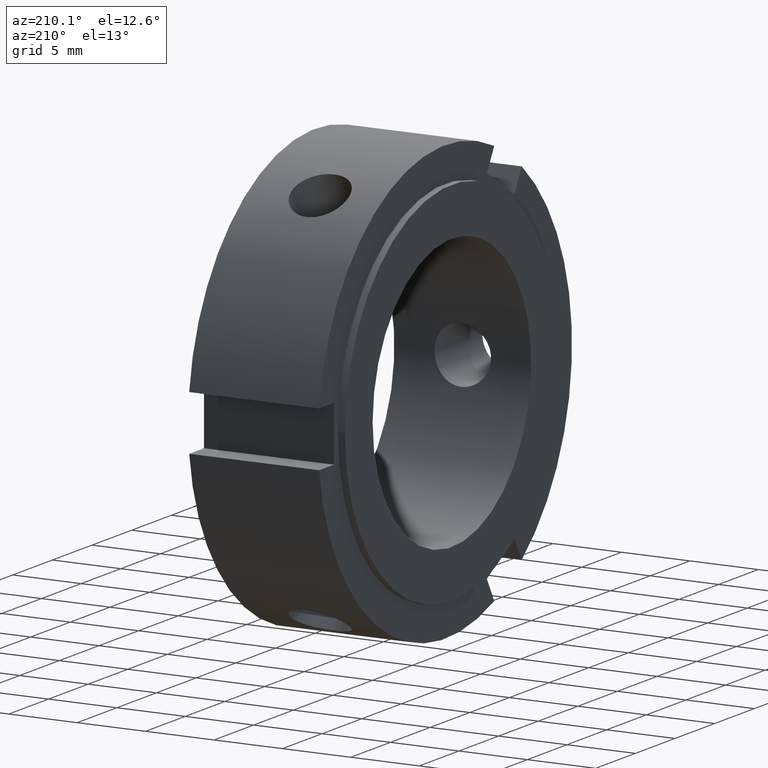
[diagram: clean part render]
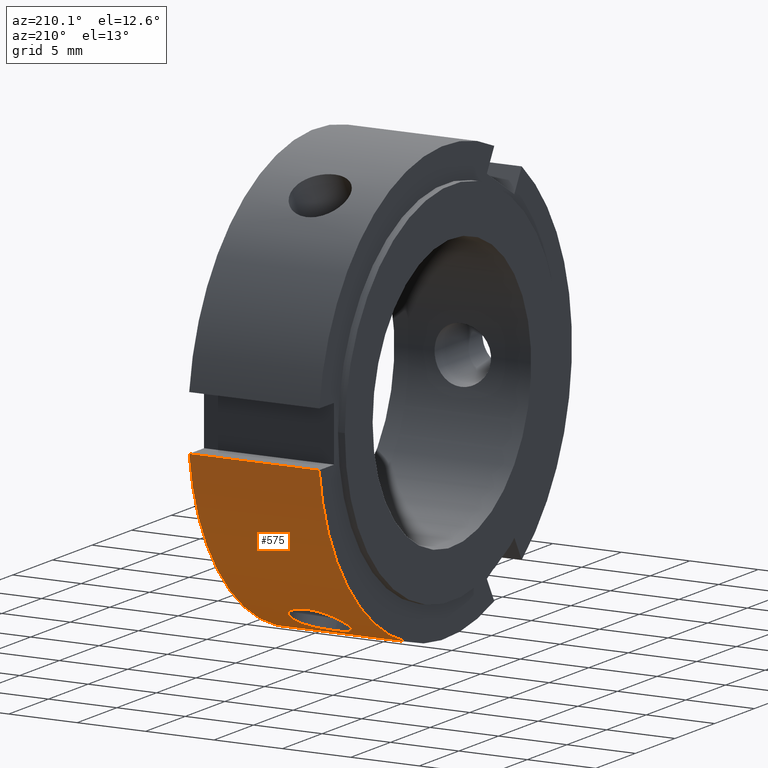
[diagram: same view with one face highlighted and labeled with its STEP entity id]
A machine part, auxiliary view. The second image highlights one B-rep face of the part: STEP entity #575.
In plain terms, the highlighted cylindrical surface (partial cylindrical patch) has radius 16 mm, axis along (1, 0, 0).
Its self-contained STEP definition (entity closure, byte-faithful):
#113=CARTESIAN_POINT('',(0.499999999999998,-6.205203125624903,-14.747727084867517));
#114=VERTEX_POINT('',#113);
#123=CARTESIAN_POINT('',(9.999999999999996,-6.205203125624903,-14.747727084867517));
#124=VERTEX_POINT('',#123);
#125=CARTESIAN_POINT('',(9.999999999999995,-6.205203125624902,-14.747727084867517));
#126=DIRECTION('',(-1.0,0.0,0.0));
#127=VECTOR('',#126,9.499999999999996);
#128=LINE('',#125,#127);
#129=EDGE_CURVE('',#124,#114,#128,.T.);
#365=CARTESIAN_POINT('',(4.999999999999996,6.142886964505618,-14.773792327676293));
#366=VERTEX_POINT('',#365);
#367=CARTESIAN_POINT('',(4.999999999999996,6.142886964505617,-14.773792327676293));
#368=CARTESIAN_POINT('',(5.259850414627229,6.142886964505617,-14.773792327676293));
#369=CARTESIAN_POINT('',(5.536820394372652,6.191433484272263,-14.753895967804445));
#370=CARTESIAN_POINT('',(6.045999172821702,6.386878303591828,-14.670346971773098));
#371=CARTESIAN_POINT('',(6.278233054693932,6.533575982405217,-14.606378314100077));
#372=CARTESIAN_POINT('',(6.644944629392624,6.867977280265613,-14.452155202713875));
#373=CARTESIAN_POINT('',(6.803974245744747,7.078040765715421,-14.351526549512908));
#374=CARTESIAN_POINT('',(7.015009926134721,7.531613029037318,-14.118774045975487));
#375=CARTESIAN_POINT('',(7.066999999999996,7.774965086744901,-13.986330428295915));
#376=CARTESIAN_POINT('',(7.066999999999997,8.225034913255094,-13.726482492806127));
#377=CARTESIAN_POINT('',(7.015009926134721,8.461410479588507,-13.581955237607932));
#378=CARTESIAN_POINT('',(6.803974245744746,8.889766192107292,-13.305526386887877));
#379=CARTESIAN_POINT('',(6.644944629392626,9.081944904852850,-13.173920398681322));
#380=CARTESIAN_POINT('',(6.278233054693933,9.382706686094178,-12.961431935368831));
#381=CARTESIAN_POINT('',(6.045999172821702,9.511454008091695,-12.866372347676741));
#382=CARTESIAN_POINT('',(5.536820394372654,9.681531970775311,-12.738886667123609));
#383=CARTESIAN_POINT('',(5.259850414627227,9.723035983750489,-12.706792327676297));
#384=CARTESIAN_POINT('',(4.740149585372764,9.723035983750489,-12.706792327676297));
#385=CARTESIAN_POINT('',(4.463179605627338,9.681531970775309,-12.738886667123611));
#386=CARTESIAN_POINT('',(3.954000827178288,9.511454008091695,-12.866372347676743));
#387=CARTESIAN_POINT('',(3.721766945306058,9.382706686094174,-12.961431935368829));
#388=CARTESIAN_POINT('',(3.355055370607366,9.081944904852845,-13.173920398681318));
#389=CARTESIAN_POINT('',(3.196025754255245,8.889766192107288,-13.305526386887871));
#390=CARTESIAN_POINT('',(2.984990073865271,8.461410479588507,-13.581955237607929));
#391=CARTESIAN_POINT('',(2.932999999999995,8.225034913255094,-13.726482492806127));
#392=CARTESIAN_POINT('',(2.932999999999995,7.774965086744901,-13.986330428295915));
#393=CARTESIAN_POINT('',(2.984990073865270,7.531613029037319,-14.118774045975487));
#394=CARTESIAN_POINT('',(3.196025754255244,7.078040765715424,-14.351526549512908));
#395=CARTESIAN_POINT('',(3.355055370607367,6.867977280265613,-14.452155202713875));
#396=CARTESIAN_POINT('',(3.721766945306058,6.533575982405217,-14.606378314100077));
#397=CARTESIAN_POINT('',(3.954000827178287,6.386878303591828,-14.670346971773098));
#398=CARTESIAN_POINT('',(4.463179605627338,6.191433484272263,-14.753895967804446));
#399=CARTESIAN_POINT('',(4.740149585372764,6.142886964505617,-14.773792327676293));
#400=CARTESIAN_POINT('',(4.999999999999996,6.142886964505617,-14.773792327676293));
#401=B_SPLINE_CURVE_WITH_KNOTS('',3,(#367,#368,#369,#370,#371,#372,#373,#374,#375,#376,#377,#378,#379,#380,#381,#382,#383,#384,#385,#386,#387,#388,#389,#390,#391,#392,#393,#394,#395,#396,#397,#398,#399,#400),.UNSPECIFIED.,.T.,.U.,(4,2,2,2,2,2,2,2,2,2,2,2,2,2,2,2,4),(0.0,0.077955124388169,0.155910248776339,0.233864629423276,0.311819010070212,0.389773390717149,0.467727771364086,0.545682895752255,0.623638020140425,0.701593144528594,0.779548268916763,0.857502649563700,0.935457030210637,1.013411410857573,1.091365791504510,1.169320915892679,1.247276040280849),.UNSPECIFIED.);
#402=EDGE_CURVE('',#366,#366,#401,.T.);
#456=CARTESIAN_POINT('',(9.999999999999996,15.874507866387543,-2.000000000000000));
#457=VERTEX_POINT('',#456);
#458=CARTESIAN_POINT('',(9.999999999999996,0.0,0.0));
#459=DIRECTION('',(1.0,0.0,0.0));
#460=DIRECTION('',(0.0,1.0,0.0));
#461=AXIS2_PLACEMENT_3D('',#458,#459,#460);
#462=CIRCLE('',#461,15.999999999999998);
#463=EDGE_CURVE('',#124,#457,#462,.T.);
#548=CARTESIAN_POINT('',(5.249999999999996,0.0,0.0));
#549=DIRECTION('',(1.0,0.0,0.0));
#550=DIRECTION('',(0.0,1.0,0.0));
#551=AXIS2_PLACEMENT_3D('',#548,#549,#550);
#552=CYLINDRICAL_SURFACE('',#551,15.999999999999998);
#553=ORIENTED_EDGE('',*,*,#129,.T.);
#554=CARTESIAN_POINT('',(0.499999999999998,15.874507866387543,-2.000000000000000));
#555=VERTEX_POINT('',#554);
#556=CARTESIAN_POINT('',(0.499999999999998,0.0,0.0));
#557=DIRECTION('',(1.0,0.0,0.0));
#558=DIRECTION('',(0.0,1.0,0.0));
#559=AXIS2_PLACEMENT_3D('',#556,#557,#558);
#560=CIRCLE('',#559,15.999999999999998);
#561=EDGE_CURVE('',#114,#555,#560,.T.);
#562=ORIENTED_EDGE('',*,*,#561,.T.);
#563=CARTESIAN_POINT('',(0.499999999999998,15.874507866387543,-2.000000000000000));
#564=DIRECTION('',(1.0,0.0,0.0));
#565=VECTOR('',#564,9.499999999999996);
#566=LINE('',#563,#565);
#567=EDGE_CURVE('',#555,#457,#566,.T.);
#568=ORIENTED_EDGE('',*,*,#567,.T.);
#569=ORIENTED_EDGE('',*,*,#463,.F.);
#570=EDGE_LOOP('',(#553,#562,#568,#569));
#571=FACE_OUTER_BOUND('',#570,.T.);
#572=ORIENTED_EDGE('',*,*,#402,.T.);
#573=EDGE_LOOP('',(#572));
#574=FACE_BOUND('',#573,.T.);
#575=ADVANCED_FACE('',(#571,#574),#552,.T.);